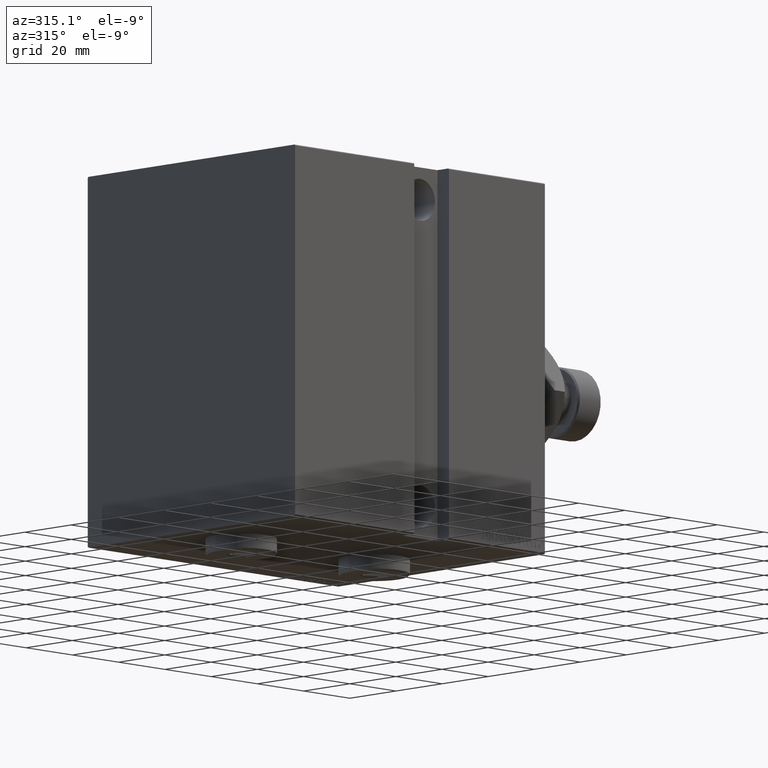
[diagram: clean part render]
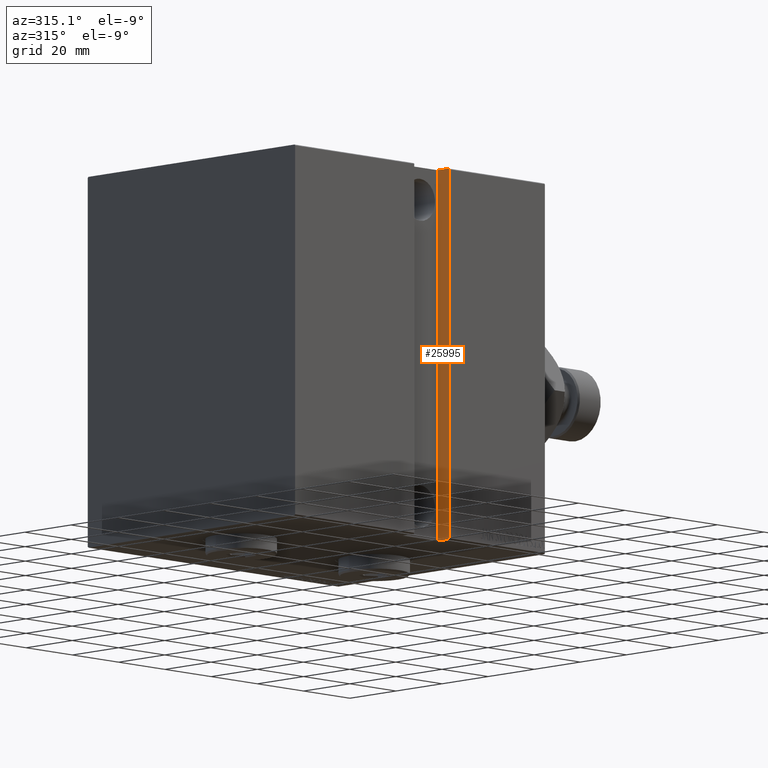
[diagram: same view with one face highlighted and labeled with its STEP entity id]
A machine part, auxiliary view. The second image highlights one B-rep face of the part: STEP entity #25995.
In plain terms, the highlighted planar face has unit normal (1, 0, 0).
Its self-contained STEP definition (entity closure, byte-faithful):
#1370 = DIRECTION ( 'NONE',  ( 1.206764157201257291E-16, 0.000000000000000000, 1.000000000000000000 ) ) ;
#3346 = ORIENTED_EDGE ( 'NONE', *, *, #7177, .F. ) ;
#3738 = LINE ( 'NONE', #42147, #5877 ) ;
#3969 = CARTESIAN_POINT ( 'NONE',  ( 41.50000000000000000, 45.00000000000001421, -57.20000000000004547 ) ) ;
#4187 = DIRECTION ( 'NONE',  ( -1.000000000000000000, 0.000000000000000000, 1.206764157201257291E-16 ) ) ;
#4405 = DIRECTION ( 'NONE',  ( -0.000000000000000000, 1.000000000000000000, -0.000000000000000000 ) ) ;
#5068 = EDGE_LOOP ( 'NONE', ( #37592, #40667, #3346, #26912, #19196, #9232 ) ) ;
#5150 = CARTESIAN_POINT ( 'NONE',  ( 41.50000000000001421, 44.70000000000001705, 57.49999999999997868 ) ) ;
#5877 = VECTOR ( 'NONE', #24362, 1000.000000000000000 ) ;
#7177 = EDGE_CURVE ( 'NONE', #25381, #37477, #34927, .T. ) ;
#7507 = VECTOR ( 'NONE', #4405, 1000.000000000000000 ) ;
#8135 = VECTOR ( 'NONE', #33730, 1000.000000000000000 ) ;
#9232 = ORIENTED_EDGE ( 'NONE', *, *, #22391, .T. ) ;
#9438 = CARTESIAN_POINT ( 'NONE',  ( 41.50000000000000000, 45.00000000000001421, -57.50000000000000711 ) ) ;
#9609 = VECTOR ( 'NONE', #30903, 1000.000000000000114 ) ;
#11544 = VECTOR ( 'NONE', #40980, 1000.000000000000000 ) ;
#12906 = LINE ( 'NONE', #9438, #8135 ) ;
#15477 = VERTEX_POINT ( 'NONE', #3969 ) ;
#16886 = AXIS2_PLACEMENT_3D ( 'NONE', #42828, #4187, #18320 ) ;
#18263 = CARTESIAN_POINT ( 'NONE',  ( 41.50000000000001421, 45.00000000000001421, 57.20000000000001705 ) ) ;
#18320 = DIRECTION ( 'NONE',  ( 1.206764157201257291E-16, 0.000000000000000000, 1.000000000000000000 ) ) ;
#18991 = CARTESIAN_POINT ( 'NONE',  ( 41.50000000000000000, 40.00000000000001421, -57.50000000000000711 ) ) ;
#19196 = ORIENTED_EDGE ( 'NONE', *, *, #32988, .T. ) ;
#20320 = EDGE_CURVE ( 'NONE', #38681, #37477, #3738, .T. ) ;
#21788 = EDGE_CURVE ( 'NONE', #15477, #38681, #12906, .T. ) ;
#22391 = EDGE_CURVE ( 'NONE', #29659, #15477, #41999, .T. ) ;
#22691 = CARTESIAN_POINT ( 'NONE',  ( 41.50000000000000000, 40.00000000000001421, -57.50000000000000711 ) ) ;
#23143 = EDGE_CURVE ( 'NONE', #28556, #25381, #43479, .T. ) ;
#24362 = DIRECTION ( 'NONE',  ( 8.533111188498877384E-17, -0.7071067811865393571, 0.7071067811865556774 ) ) ;
#25270 = FACE_OUTER_BOUND ( 'NONE', #5068, .T. ) ;
#25381 = VERTEX_POINT ( 'NONE', #41377 ) ;
#25995 = ADVANCED_FACE ( 'NONE', ( #25270 ), #33303, .F. ) ;
#26912 = ORIENTED_EDGE ( 'NONE', *, *, #23143, .F. ) ;
#28556 = VERTEX_POINT ( 'NONE', #36146 ) ;
#29659 = VERTEX_POINT ( 'NONE', #42616 ) ;
#30903 = DIRECTION ( 'NONE',  ( 8.533111188498778777E-17, 0.7071067811865474617, 0.7071067811865474617 ) ) ;
#31809 = VECTOR ( 'NONE', #1370, 1000.000000000000000 ) ;
#32988 = EDGE_CURVE ( 'NONE', #28556, #29659, #39576, .T. ) ;
#33303 = PLANE ( 'NONE',  #16886 ) ;
#33730 = DIRECTION ( 'NONE',  ( 1.206764157201257291E-16, 0.000000000000000000, 1.000000000000000000 ) ) ;
#34927 = LINE ( 'NONE', #38405, #11544 ) ;
#36146 = CARTESIAN_POINT ( 'NONE',  ( 41.50000000000000000, 40.00000000000001421, -57.50000000000000711 ) ) ;
#37477 = VERTEX_POINT ( 'NONE', #5150 ) ;
#37592 = ORIENTED_EDGE ( 'NONE', *, *, #21788, .T. ) ;
#37838 = CARTESIAN_POINT ( 'NONE',  ( 41.49999999999999289, 45.00000000000002132, -57.20000000000003837 ) ) ;
#38405 = CARTESIAN_POINT ( 'NONE',  ( 41.50000000000001421, 40.00000000000001421, 57.49999999999997868 ) ) ;
#38681 = VERTEX_POINT ( 'NONE', #18263 ) ;
#39576 = LINE ( 'NONE', #18991, #7507 ) ;
#40667 = ORIENTED_EDGE ( 'NONE', *, *, #20320, .T. ) ;
#40980 = DIRECTION ( 'NONE',  ( -0.000000000000000000, 1.000000000000000000, -0.000000000000000000 ) ) ;
#41377 = CARTESIAN_POINT ( 'NONE',  ( 41.50000000000001421, 40.00000000000001421, 57.49999999999997868 ) ) ;
#41999 = LINE ( 'NONE', #37838, #9609 ) ;
#42147 = CARTESIAN_POINT ( 'NONE',  ( 41.50000000000000711, 44.70000000000000995, 57.50000000000002132 ) ) ;
#42616 = CARTESIAN_POINT ( 'NONE',  ( 41.50000000000000000, 44.70000000000004547, -57.50000000000000711 ) ) ;
#42828 = CARTESIAN_POINT ( 'NONE',  ( 41.50000000000000000, 40.00000000000001421, -57.50000000000000711 ) ) ;
#43479 = LINE ( 'NONE', #22691, #31809 ) ;